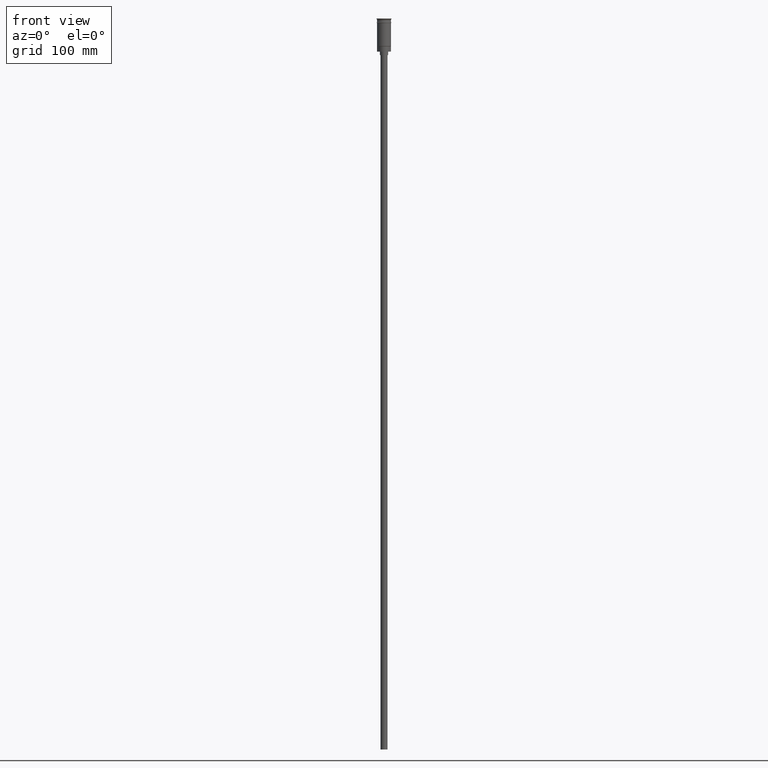
[diagram: clean part render]
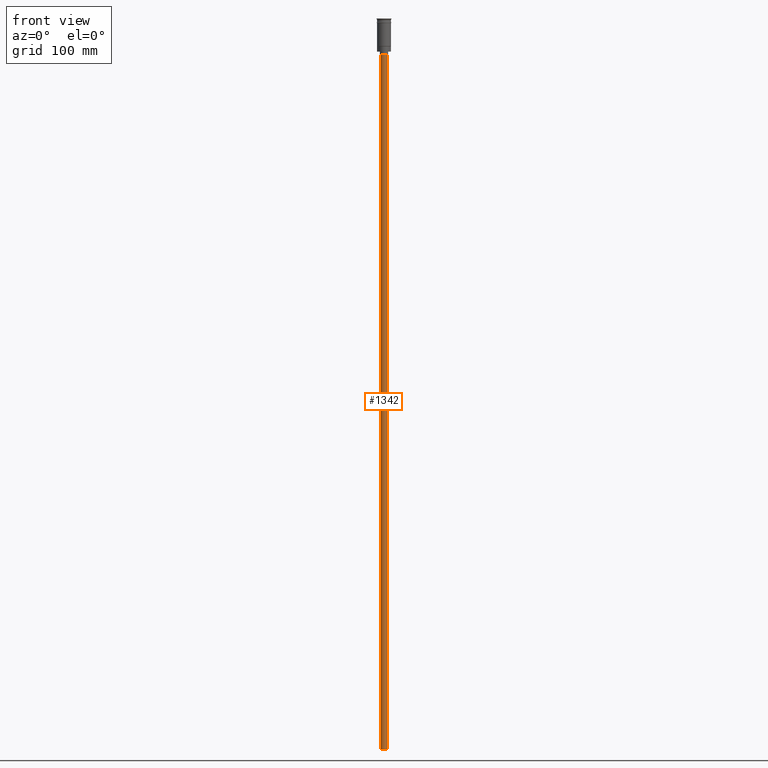
[diagram: same view with one face highlighted and labeled with its STEP entity id]
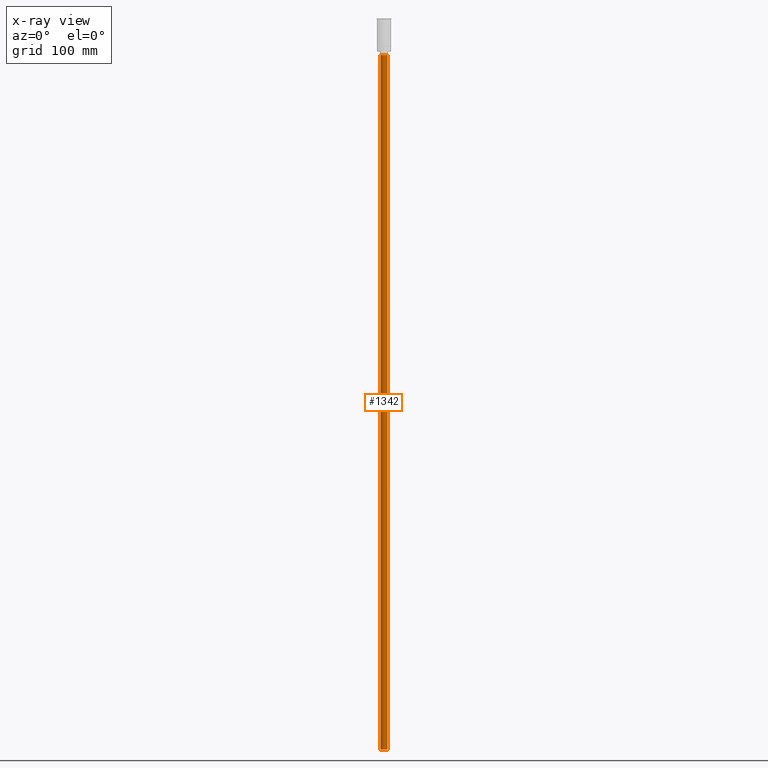
[diagram: x-ray of the same camera — body ghosted, the highlighted face saturated]
A machine part, front view. The second image highlights one B-rep face of the part: STEP entity #1342.
The next image is the same camera in x-ray: the body ghosted, the highlighted face saturated — about 0% of this face is hidden behind the body in this view.
In plain terms, the highlighted cylindrical surface (edge-blend (fillet) strip) has radius 3 mm, axis along (-0, -0, 1).
Its self-contained STEP definition (entity closure, byte-faithful):
#6 = LINE ( 'NONE', #502, #904 ) ;
#48 = DIRECTION ( 'NONE',  ( -1.000000000000000000, 0.000000000000000000, 0.000000000000000000 ) ) ;
#163 = DIRECTION ( 'NONE',  ( -0.000000000000000000, -0.000000000000000000, 1.000000000000000000 ) ) ;
#177 = VERTEX_POINT ( 'NONE', #585 ) ;
#193 = ORIENTED_EDGE ( 'NONE', *, *, #408, .T. ) ;
#225 = DIRECTION ( 'NONE',  ( -0.000000000000000000, -0.000000000000000000, 1.000000000000000000 ) ) ;
#231 = CARTESIAN_POINT ( 'NONE',  ( 0.000000000000000000, 0.000000000000000000, -628.5000000000000000 ) ) ;
#243 = VERTEX_POINT ( 'NONE', #1573 ) ;
#266 = ORIENTED_EDGE ( 'NONE', *, *, #917, .F. ) ;
#408 = EDGE_CURVE ( 'NONE', #563, #177, #6, .T. ) ;
#472 = CARTESIAN_POINT ( 'NONE',  ( 0.000000000000000000, 0.000000000000000000, -628.5000000000000000 ) ) ;
#500 = ORIENTED_EDGE ( 'NONE', *, *, #1181, .F. ) ;
#502 = CARTESIAN_POINT ( 'NONE',  ( 3.000000000000000444, 0.000000000000000000, -628.5000000000000000 ) ) ;
#563 = VERTEX_POINT ( 'NONE', #1517 ) ;
#580 = EDGE_CURVE ( 'NONE', #177, #1275, #991, .T. ) ;
#585 = CARTESIAN_POINT ( 'NONE',  ( 3.000000000000000444, 0.000000000000000000, -31.50000000000000000 ) ) ;
#664 = CARTESIAN_POINT ( 'NONE',  ( 0.000000000000000000, 0.000000000000000000, -31.50000000000000000 ) ) ;
#753 = AXIS2_PLACEMENT_3D ( 'NONE', #664, #1158, #48 ) ;
#784 = LINE ( 'NONE', #1169, #1480 ) ;
#802 = AXIS2_PLACEMENT_3D ( 'NONE', #472, #225, #1453 ) ;
#827 = CIRCLE ( 'NONE', #1217, 3.000000000000000444 ) ;
#873 = DIRECTION ( 'NONE',  ( -0.000000000000000000, -0.000000000000000000, 1.000000000000000000 ) ) ;
#904 = VECTOR ( 'NONE', #873, 1000.000000000000000 ) ;
#917 = EDGE_CURVE ( 'NONE', #563, #243, #827, .T. ) ;
#937 = ORIENTED_EDGE ( 'NONE', *, *, #580, .T. ) ;
#991 = CIRCLE ( 'NONE', #753, 3.000000000000000444 ) ;
#1001 = FACE_OUTER_BOUND ( 'NONE', #1335, .T. ) ;
#1112 = CYLINDRICAL_SURFACE ( 'NONE', #802, 3.000000000000000444 ) ;
#1158 = DIRECTION ( 'NONE',  ( 0.000000000000000000, 0.000000000000000000, -1.000000000000000000 ) ) ;
#1169 = CARTESIAN_POINT ( 'NONE',  ( -3.000000000000000444, 3.673940397442060361E-16, -628.5000000000000000 ) ) ;
#1181 = EDGE_CURVE ( 'NONE', #243, #1275, #784, .T. ) ;
#1208 = CARTESIAN_POINT ( 'NONE',  ( -3.000000000000000444, 3.673940397442060361E-16, -31.50000000000000000 ) ) ;
#1217 = AXIS2_PLACEMENT_3D ( 'NONE', #231, #1474, #1344 ) ;
#1275 = VERTEX_POINT ( 'NONE', #1208 ) ;
#1335 = EDGE_LOOP ( 'NONE', ( #500, #266, #193, #937 ) ) ;
#1342 = ADVANCED_FACE ( 'NONE', ( #1001 ), #1112, .T. ) ;
#1344 = DIRECTION ( 'NONE',  ( -1.000000000000000000, 0.000000000000000000, 0.000000000000000000 ) ) ;
#1453 = DIRECTION ( 'NONE',  ( 1.000000000000000000, 0.000000000000000000, 0.000000000000000000 ) ) ;
#1474 = DIRECTION ( 'NONE',  ( 0.000000000000000000, 0.000000000000000000, -1.000000000000000000 ) ) ;
#1480 = VECTOR ( 'NONE', #163, 1000.000000000000000 ) ;
#1517 = CARTESIAN_POINT ( 'NONE',  ( 3.000000000000000444, 0.000000000000000000, -628.5000000000000000 ) ) ;
#1573 = CARTESIAN_POINT ( 'NONE',  ( -3.000000000000000444, 3.673940397442060361E-16, -628.5000000000000000 ) ) ;